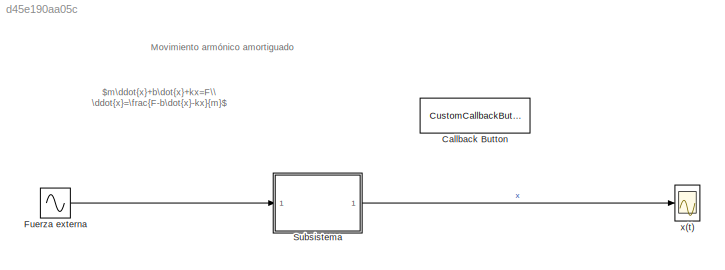
MODEL slx_d45e190aa05c
KIND model
CONFIG AbsTol = auto
CONFIG EnableMultiTasking = off
CONFIG FixedStep = 0.01
CONFIG MaxStep = auto
CONFIG MinStep = auto
CONFIG RelTol = 1e-3
CONFIG SampleTimeConstraint = Unconstrained
CONFIG SolverName = ode4
CONFIG StartTime = 0.0
CONFIG StopTime = 100.0
BLOCK [CustomCallbackButton] Callback Button
  Configuration = {"components":[{"name":"BackgroundImageComponent","settings":{"image":{"size":[0,0],"src":"default","srcOrientation":"Right"},"position":[0,0,1,1]}},{"name":"ButtonStateComponent","settings":{"buttonType":"momentary","clickFcn":"close all\nx = out.posicion;\nv = out.velocidad;\nn = length(x(1,:));\n\nplot(x(:,2),v(:,2),'LineWidth',3)\nhold on\n\nfor k=3:n\n    plot(x(:,k),v(:,k),'LineWidth',3)\nen...<+2349ch>
  CustomBackgroundColor = {"color":[0.9568627451,0.9568627451,0.9568627451],"show":true}
BLOCK [Sin] Fuerza externa
  Amplitude = 0
  Frequency = 1/(2*pi)
  SampleTime = 0
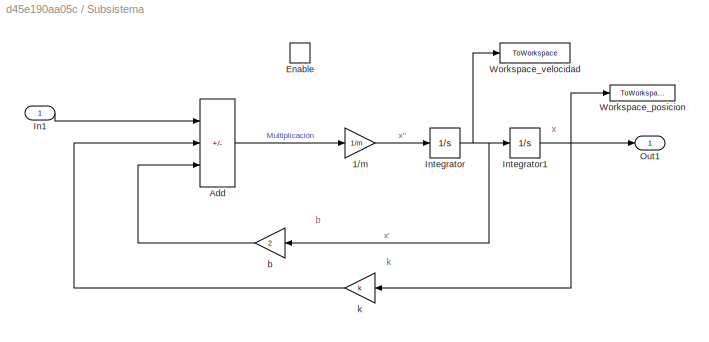
BLOCK [SubSystem] Subsistema
BLOCK [Gain] Subsistema/1//m
  Gain = 1/m
BLOCK [Sum] Subsistema/Add
  IconShape = rectangular
  Inputs = +--
BLOCK [EnablePort] Subsistema/Enable
BLOCK [Inport] Subsistema/In1
BLOCK [Integrator] Subsistema/Integrator
BLOCK [Integrator] Subsistema/Integrator1
  InitialCondition = linspace(-1,1,20)
BLOCK [Outport] Subsistema/Out1
BLOCK [ToWorkspace] Subsistema/Workspace_posicion
  FixptAsFi = on
  MaxDataPoints = inf
  SampleTime = -1
  VariableName = posicion
BLOCK [ToWorkspace] Subsistema/Workspace_velocidad
  FixptAsFi = on
  MaxDataPoints = inf
  SampleTime = -1
  VariableName = velocidad
BLOCK [Gain] Subsistema/b
  Gain = 2
BLOCK [Gain] Subsistema/k
  Gain = k
BLOCK [Scope] x(t)
  Floating = off
  NumInputPorts = 1
  ScopeSpecificationString = Simulink.scopes.TimeScopeBlockCfg('CurrentConfiguration', extmgr.ConfigurationSet(extmgr.Configuration('Core','General UI',true,'FigureColor',[0 0 0]),extmgr.Configuration('Core','Source UI',true),extmgr.Configuration('Sources','WiredSimulink',true),extmgr.Configuration('Visuals','Time Domain',true,'SerializedDisplays',{struct('MinYLimReal','-1.00000','MaxYLimReal','1.00000','YLabelReal','','MinYL...<+1726ch>
ANNOTATION (root): Movimiento armónico amortiguado
ANNOTATION (root): $m\ddot{x}+b\dot{x}+kx=F\\ \ddot{x}=\frac{F-b\dot{x}-kx}{m}$
ANNOTATION Subsistema: b
ANNOTATION Subsistema: k
ANNOTATION Subsistema: x
LINE Fuerza externa:1 -> Subsistema:1
LINE Subsistema/1//m:1 -> Subsistema/Integrator:1
LINE Subsistema/Add:1 -> Subsistema/1//m:1
LINE Subsistema/In1:1 -> Subsistema/Add:1
NET Subsistema/Integrator1:1 -> Subsistema/Out1:1, Subsistema/Workspace_posicion:1, Subsistema/k:1
NET Subsistema/Integrator:1 -> Subsistema/Integrator1:1, Subsistema/Workspace_velocidad:1, Subsistema/b:1
LINE Subsistema/b:1 -> Subsistema/Add:3
LINE Subsistema/k:1 -> Subsistema/Add:2
LINE Subsistema:1 -> x(t):1
note: NET lines group one-source signal fan-out (src -> all destinations, sorted); 1:1 wires keep LINE
